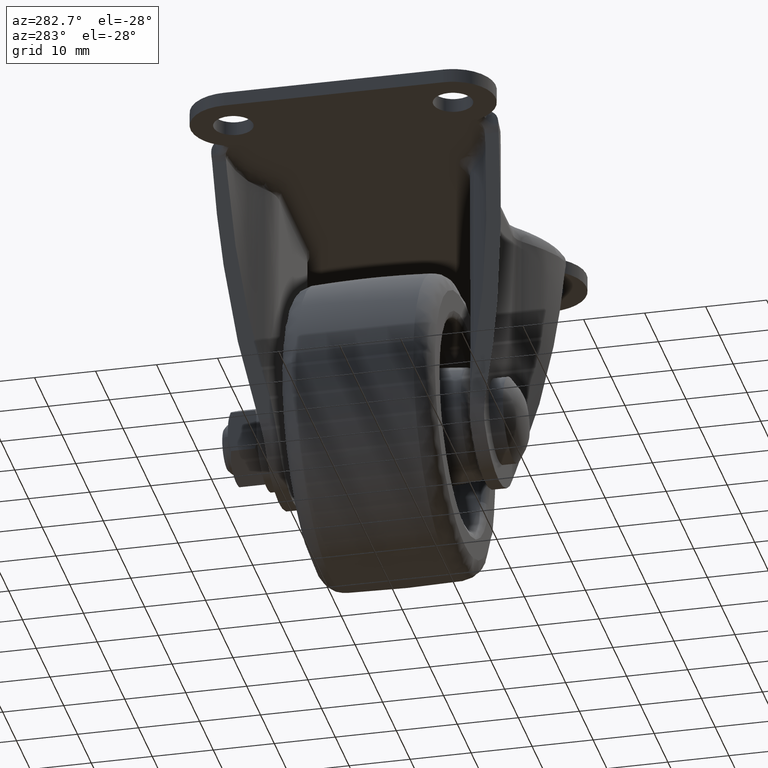
[diagram: clean part render]
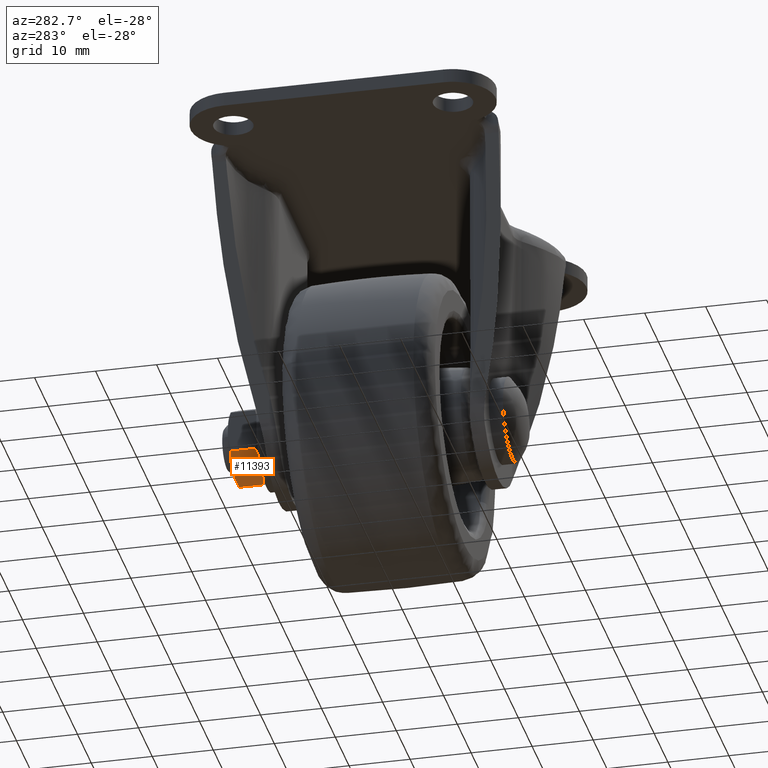
[diagram: same view with one face highlighted and labeled with its STEP entity id]
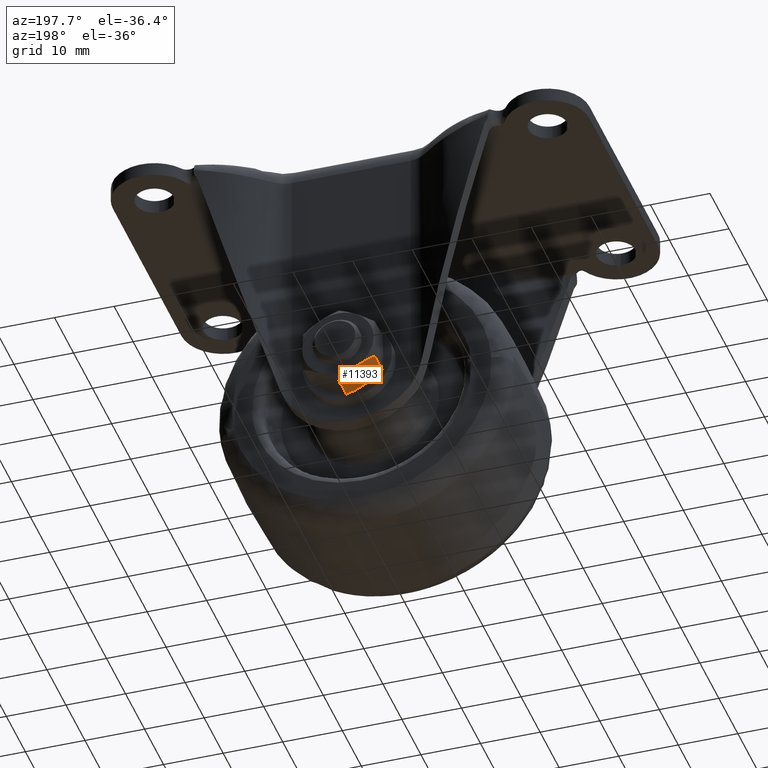
[diagram: same view with one face highlighted and labeled with its STEP entity id]
A machine part, auxiliary view. The second image highlights one B-rep face of the part: STEP entity #11393.
A second angle (auxiliary view) of the same face is appended — the face is thin or edge-on in the first view.
In plain terms, the highlighted face is a freeform B-spline surface patch.
Its self-contained STEP definition (entity closure, byte-faithful):
#10960=CARTESIAN_POINT('',(-2.999999633925295,25.0,-48.196152711353299));
#10961=VERTEX_POINT('',#10960);
#10962=CARTESIAN_POINT('',(-5.999999267850580,24.464102000000000,-46.464102422706603));
#10963=VERTEX_POINT('',#10962);
#10964=CARTESIAN_POINT('',(-2.999999633925295,25.0,-48.196152711353299));
#10965=CARTESIAN_POINT('',(-3.125635489000625,24.999999259196859,-48.123616829486217));
#10966=CARTESIAN_POINT('',(-3.251880561565789,24.996939349356921,-48.050729215799890));
#10967=CARTESIAN_POINT('',(-3.505153295206228,24.984702786906070,-47.904502160820464));
#10968=CARTESIAN_POINT('',(-3.632302030473223,24.975448064795390,-47.831092817322592));
#10969=CARTESIAN_POINT('',(-4.012475885304950,24.938814314766621,-47.611599378873173));
#10970=CARTESIAN_POINT('',(-4.264225679236425,24.902544966710391,-47.466251593388549));
#10971=CARTESIAN_POINT('',(-5.014992998939725,24.762492379320669,-47.032795956229947));
#10972=CARTESIAN_POINT('',(-5.509545926968403,24.627586341080299,-46.747265740807109));
#10973=CARTESIAN_POINT('',(-5.999999267850580,24.464102000000000,-46.464102422706603));
#10974=B_SPLINE_CURVE_WITH_KNOTS('',3,(#10964,#10965,#10966,#10967,#10968,#10969,#10970,#10971,#10972,#10973),.UNSPECIFIED.,.F.,.U.,(4,2,2,2,4),(0.500936256220579,0.562499999999998,0.624999999999997,0.749999999999998,1.0),.UNSPECIFIED.);
#10975=EDGE_CURVE('',#10961,#10963,#10974,.T.);
#11157=CARTESIAN_POINT('',(0.0,24.464102000000000,-49.928203000000003));
#11158=VERTEX_POINT('',#11157);
#11172=CARTESIAN_POINT('',(0.0,24.464102000000000,-49.928203000000003));
#11173=CARTESIAN_POINT('',(-0.489842800446103,24.627382827733701,-49.645392177521963));
#11174=CARTESIAN_POINT('',(-0.983257101091272,24.761955882241370,-49.360519348808772));
#11175=CARTESIAN_POINT('',(-1.731096752063822,24.901776454314781,-48.928754001679813));
#11176=CARTESIAN_POINT('',(-1.981666087436681,24.938018679062552,-48.784087754140749));
#11177=CARTESIAN_POINT('',(-2.485723064760711,24.987045735646259,-48.493070374273202));
#11178=CARTESIAN_POINT('',(-2.739213228478935,24.999810297480060,-48.346717786002131));
#11179=CARTESIAN_POINT('',(-2.996178456084454,24.999999258790581,-48.198358869016538));
#11180=CARTESIAN_POINT('',(-2.998088974604447,24.999999955893362,-48.197255830830599));
#11181=CARTESIAN_POINT('',(-2.999999633925295,25.0,-48.196152711353299));
#11182=B_SPLINE_CURVE_WITH_KNOTS('',3,(#11172,#11173,#11174,#11175,#11176,#11177,#11178,#11179,#11180,#11181),.UNSPECIFIED.,.F.,.U.,(4,2,2,2,4),(0.0,0.249999999999999,0.374999999999998,0.499999999999998,0.500936256192048),.UNSPECIFIED.);
#11183=EDGE_CURVE('',#11158,#10961,#11182,.T.);
#11342=CARTESIAN_POINT('',(0.299700227116946,19.750250009690969,-50.101234976075993));
#11343=CARTESIAN_POINT('',(-6.299699261521684,19.750250009690969,-46.291070581410537));
#11344=CARTESIAN_POINT('',(0.299700227116946,25.249750124419482,-50.101234976075993));
#11345=CARTESIAN_POINT('',(-6.299699261521684,25.249750124419482,-46.291070581410537));
#11346=B_SPLINE_SURFACE_WITH_KNOTS('',1,1,((#11342,#11344),(#11343,#11345)),.UNSPECIFIED.,.F.,.F.,.U.,(2,2),(2,2),(0.0,7.620329804215833),(0.0,5.499500114728509),.UNSPECIFIED.);
#11347=CARTESIAN_POINT('',(-6.0,20.535898000000099,-46.464101999999997));
#11348=VERTEX_POINT('',#11347);
#11349=CARTESIAN_POINT('',(-6.0,20.535898000000099,-46.464101999999997));
#11350=CARTESIAN_POINT('',(-5.999999267850580,24.464102000000000,-46.464102422706603));
#11351=QUASI_UNIFORM_CURVE('',1,(#11349,#11350),.UNSPECIFIED.,.F.,.U.);
#11352=EDGE_CURVE('',#11348,#10963,#11351,.T.);
#11353=ORIENTED_EDGE('',*,*,#11352,.T.);
#11354=ORIENTED_EDGE('',*,*,#10975,.F.);
#11355=ORIENTED_EDGE('',*,*,#11183,.F.);
#11356=CARTESIAN_POINT('',(0.0,20.535898000000099,-49.928203000000003));
#11357=VERTEX_POINT('',#11356);
#11358=CARTESIAN_POINT('',(0.0,20.535898000000099,-49.928203000000003));
#11359=CARTESIAN_POINT('',(0.0,24.464102000000000,-49.928203000000003));
#11360=QUASI_UNIFORM_CURVE('',1,(#11358,#11359),.UNSPECIFIED.,.F.,.U.);
#11361=EDGE_CURVE('',#11357,#11158,#11360,.T.);
#11362=ORIENTED_EDGE('',*,*,#11361,.F.);
#11363=CARTESIAN_POINT('',(-2.999999633925295,20.0,-48.196152711353299));
#11364=VERTEX_POINT('',#11363);
#11365=CARTESIAN_POINT('',(-2.999999633925295,20.0,-48.196152711353299));
#11366=CARTESIAN_POINT('',(-2.874363884339287,20.000000740846829,-48.268688532316048));
#11367=CARTESIAN_POINT('',(-2.748118919556601,20.003060645468729,-48.341576083774157));
#11368=CARTESIAN_POINT('',(-2.494846278271933,20.015297193120379,-48.487803085431992));
#11369=CARTESIAN_POINT('',(-2.367697527943024,20.024551911544648,-48.561212437625827));
#11370=CARTESIAN_POINT('',(-1.987523627799639,20.061185652922529,-48.780705902235923));
#11371=CARTESIAN_POINT('',(-1.735773803494369,20.097454998443201,-48.926053705256876));
#11372=CARTESIAN_POINT('',(-0.985006392294375,20.237507587185561,-49.359509395241112));
#11373=CARTESIAN_POINT('',(-0.490453402776124,20.372413638288482,-49.645039646164967));
#11374=CARTESIAN_POINT('',(0.0,20.535898000000099,-49.928203000000003));
#11375=B_SPLINE_CURVE_WITH_KNOTS('',3,(#11365,#11366,#11367,#11368,#11369,#11370,#11371,#11372,#11373,#11374),.UNSPECIFIED.,.F.,.U.,(4,2,2,2,4),(0.500936316057084,0.562499999999998,0.624999999999998,0.749999999999999,1.0),.UNSPECIFIED.);
#11376=EDGE_CURVE('',#11364,#11357,#11375,.T.);
#11377=ORIENTED_EDGE('',*,*,#11376,.F.);
#11378=CARTESIAN_POINT('',(-6.0,20.535898000000099,-46.464101999999997));
#11379=CARTESIAN_POINT('',(-5.510157119263572,20.372617360856150,-46.746912868833633));
#11380=CARTESIAN_POINT('',(-5.016742765930023,20.238044260537251,-47.031785727966479));
#11381=CARTESIAN_POINT('',(-4.268903031681602,20.098223626763058,-47.463551123174767));
#11382=CARTESIAN_POINT('',(-4.018333667832962,20.061981382686781,-47.608217387154347));
#11383=CARTESIAN_POINT('',(-3.514276631752863,20.012954291707160,-47.899234800944697));
#11384=CARTESIAN_POINT('',(-3.260786437751046,20.000189714823669,-48.045587406700001));
#11385=CARTESIAN_POINT('',(-3.003821056475952,20.000000741299441,-48.193946412406753));
#11386=CARTESIAN_POINT('',(-3.001910415609916,20.000000044107370,-48.195049521229187));
#11387=CARTESIAN_POINT('',(-2.999999633925295,20.0,-48.196152711353299));
#11388=B_SPLINE_CURVE_WITH_KNOTS('',3,(#11378,#11379,#11380,#11381,#11382,#11383,#11384,#11385,#11386,#11387),.UNSPECIFIED.,.F.,.U.,(4,2,2,2,4),(0.0,0.249999999999998,0.374999999999998,0.499999999999998,0.500936316028552),.UNSPECIFIED.);
#11389=EDGE_CURVE('',#11348,#11364,#11388,.T.);
#11390=ORIENTED_EDGE('',*,*,#11389,.F.);
#11391=EDGE_LOOP('',(#11353,#11354,#11355,#11362,#11377,#11390));
#11392=FACE_OUTER_BOUND('',#11391,.T.);
#11393=ADVANCED_FACE('',(#11392),#11346,.T.);